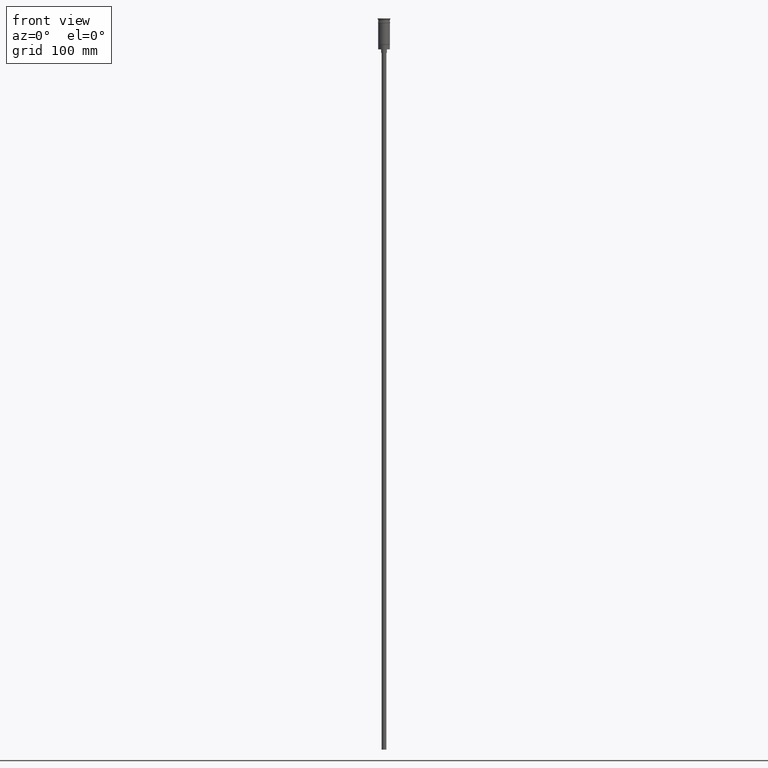
[diagram: clean part render]
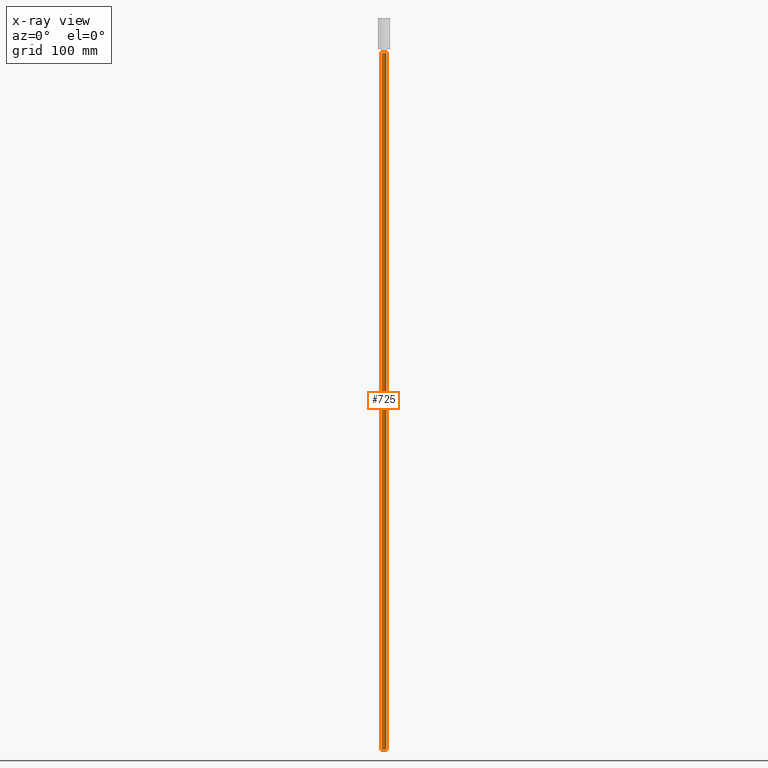
[diagram: x-ray — body ghosted, one internal face saturated and labeled with its STEP entity id]
A machine part, front view, then the same camera in x-ray: the body is ghosted and one INTERNAL B-rep face — a face not visible from any outside direction — is saturated and labeled: STEP entity #725.
In plain terms, the highlighted cylindrical surface (edge-blend (fillet) strip) has radius 2 mm, axis along (-0, -0, 1).
Its self-contained STEP definition (entity closure, byte-faithful):
#34 = DIRECTION ( 'NONE',  ( -0.000000000000000000, -0.000000000000000000, 1.000000000000000000 ) ) ;
#83 = EDGE_CURVE ( 'NONE', #1585, #1209, #152, .T. ) ;
#93 = LINE ( 'NONE', #809, #702 ) ;
#152 = LINE ( 'NONE', #786, #536 ) ;
#240 = DIRECTION ( 'NONE',  ( -1.000000000000000000, 0.000000000000000000, 0.000000000000000000 ) ) ;
#319 = EDGE_CURVE ( 'NONE', #1585, #992, #1207, .T. ) ;
#345 = CYLINDRICAL_SURFACE ( 'NONE', #1427, 2.000000000000000000 ) ;
#412 = ORIENTED_EDGE ( 'NONE', *, *, #319, .F. ) ;
#446 = ORIENTED_EDGE ( 'NONE', *, *, #1019, .T. ) ;
#531 = CARTESIAN_POINT ( 'NONE',  ( 2.000000000000000000, 0.000000000000000000, -626.5000000000000000 ) ) ;
#536 = VECTOR ( 'NONE', #34, 1000.000000000000000 ) ;
#596 = DIRECTION ( 'NONE',  ( 0.000000000000000000, 0.000000000000000000, -1.000000000000000000 ) ) ;
#680 = AXIS2_PLACEMENT_3D ( 'NONE', #1500, #1399, #781 ) ;
#702 = VECTOR ( 'NONE', #1298, 1000.000000000000000 ) ;
#725 = ADVANCED_FACE ( 'NONE', ( #1082 ), #345, .T. ) ;
#728 = VERTEX_POINT ( 'NONE', #1306 ) ;
#730 = CARTESIAN_POINT ( 'NONE',  ( -2.000000000000000000, 2.449293598294706414E-16, -29.50000000000000000 ) ) ;
#757 = EDGE_CURVE ( 'NONE', #992, #728, #93, .T. ) ;
#781 = DIRECTION ( 'NONE',  ( -1.000000000000000000, 0.000000000000000000, 0.000000000000000000 ) ) ;
#786 = CARTESIAN_POINT ( 'NONE',  ( -2.000000000000000000, 2.449293598294706414E-16, -626.5000000000000000 ) ) ;
#809 = CARTESIAN_POINT ( 'NONE',  ( 2.000000000000000000, 0.000000000000000000, -626.5000000000000000 ) ) ;
#840 = CARTESIAN_POINT ( 'NONE',  ( 0.000000000000000000, 0.000000000000000000, -626.5000000000000000 ) ) ;
#965 = CIRCLE ( 'NONE', #680, 2.000000000000000000 ) ;
#992 = VERTEX_POINT ( 'NONE', #531 ) ;
#1019 = EDGE_CURVE ( 'NONE', #1209, #728, #965, .T. ) ;
#1082 = FACE_OUTER_BOUND ( 'NONE', #1202, .T. ) ;
#1185 = DIRECTION ( 'NONE',  ( -0.000000000000000000, -0.000000000000000000, 1.000000000000000000 ) ) ;
#1192 = CARTESIAN_POINT ( 'NONE',  ( -2.000000000000000000, 2.449293598294706414E-16, -626.5000000000000000 ) ) ;
#1202 = EDGE_LOOP ( 'NONE', ( #412, #1367, #446, #1579 ) ) ;
#1207 = CIRCLE ( 'NONE', #1366, 2.000000000000000000 ) ;
#1209 = VERTEX_POINT ( 'NONE', #730 ) ;
#1298 = DIRECTION ( 'NONE',  ( -0.000000000000000000, -0.000000000000000000, 1.000000000000000000 ) ) ;
#1306 = CARTESIAN_POINT ( 'NONE',  ( 2.000000000000000000, 0.000000000000000000, -29.50000000000000000 ) ) ;
#1366 = AXIS2_PLACEMENT_3D ( 'NONE', #1525, #596, #240 ) ;
#1367 = ORIENTED_EDGE ( 'NONE', *, *, #83, .T. ) ;
#1399 = DIRECTION ( 'NONE',  ( 0.000000000000000000, 0.000000000000000000, -1.000000000000000000 ) ) ;
#1427 = AXIS2_PLACEMENT_3D ( 'NONE', #840, #1185, #1431 ) ;
#1431 = DIRECTION ( 'NONE',  ( 1.000000000000000000, 0.000000000000000000, 0.000000000000000000 ) ) ;
#1500 = CARTESIAN_POINT ( 'NONE',  ( 0.000000000000000000, 0.000000000000000000, -29.50000000000000000 ) ) ;
#1525 = CARTESIAN_POINT ( 'NONE',  ( 0.000000000000000000, 0.000000000000000000, -626.5000000000000000 ) ) ;
#1579 = ORIENTED_EDGE ( 'NONE', *, *, #757, .F. ) ;
#1585 = VERTEX_POINT ( 'NONE', #1192 ) ;